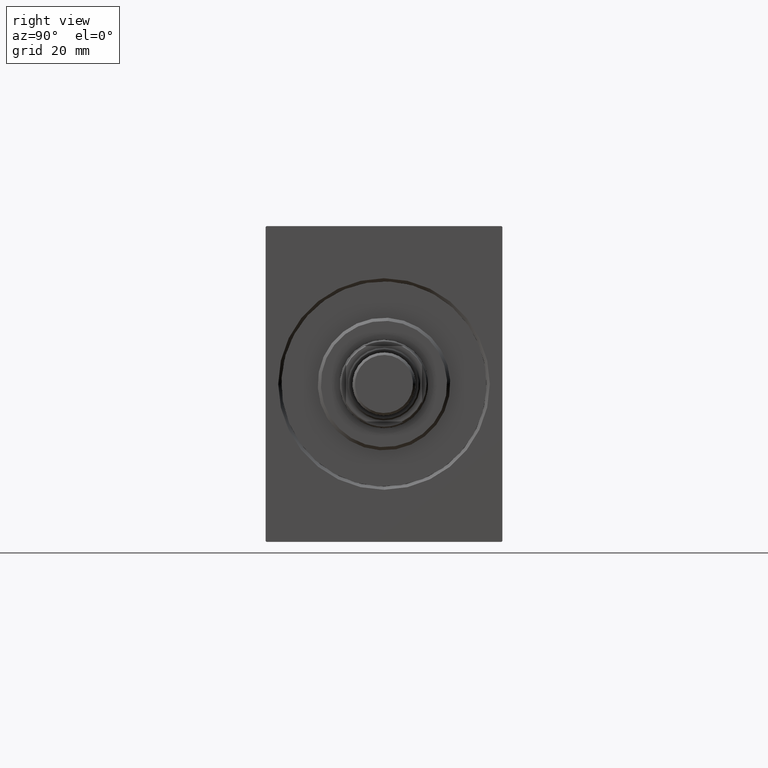
[diagram: clean part render]
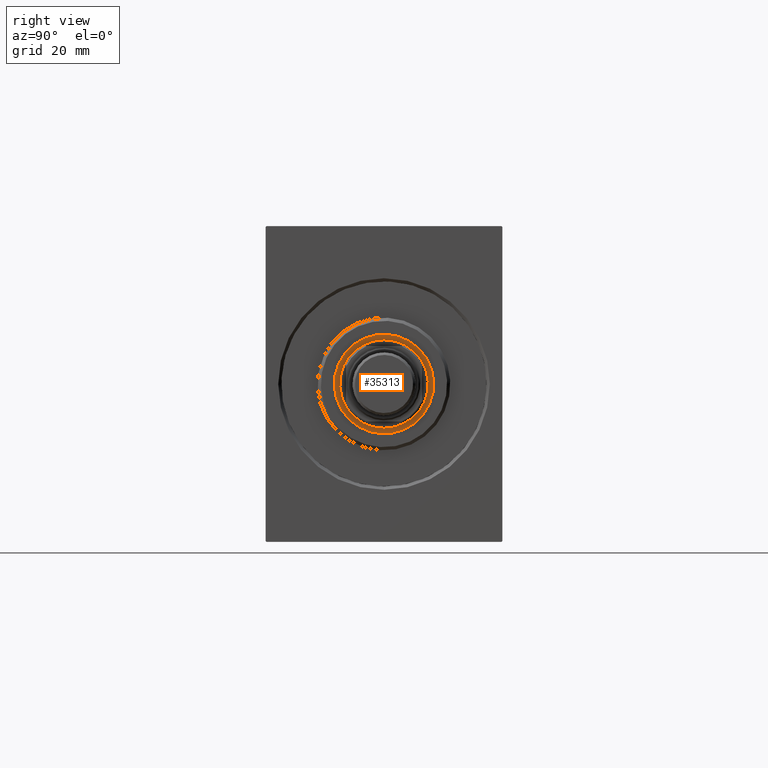
[diagram: same view with one face highlighted and labeled with its STEP entity id]
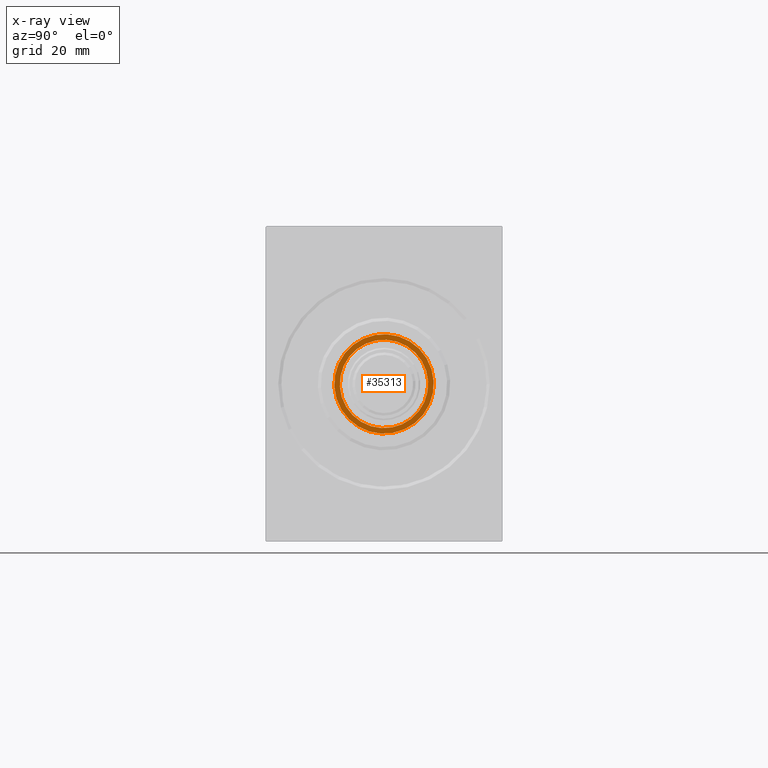
[diagram: x-ray of the same camera — body ghosted, the highlighted face saturated]
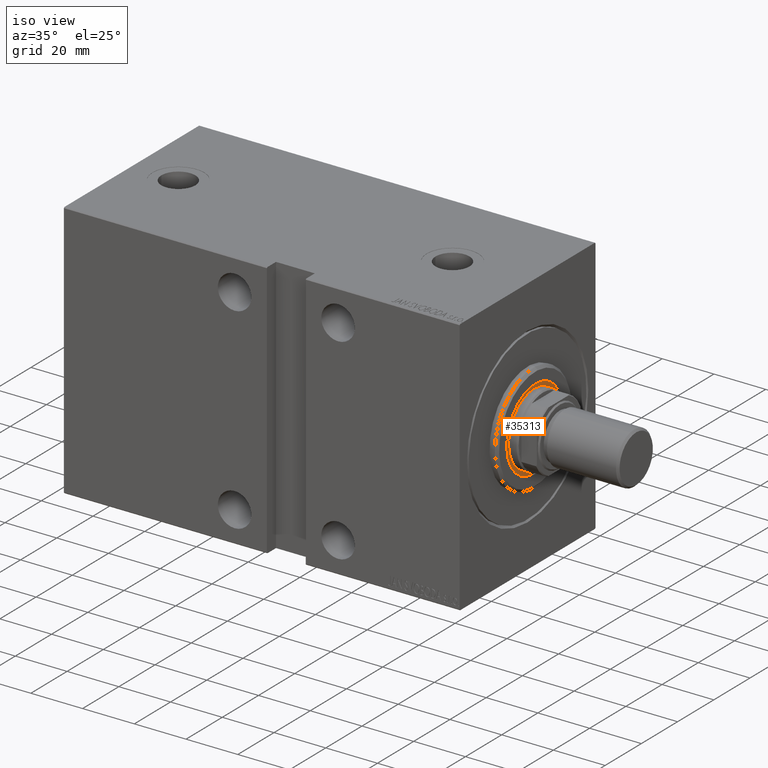
[diagram: same view with one face highlighted and labeled with its STEP entity id]
A machine part, right view. The second image highlights one B-rep face of the part: STEP entity #35313.
The next image is the same camera in x-ray: the body ghosted, the highlighted face saturated — about 0% of this face is hidden behind the body in this view.
A second angle (iso view) of the same face is appended — the face is thin or edge-on in the first view.
In plain terms, the highlighted planar face has unit normal (1, -0, -0).
Its self-contained STEP definition (entity closure, byte-faithful):
#1114 = AXIS2_PLACEMENT_3D ( 'NONE', #30629, #14237, #38216 ) ;
#3281 = FACE_OUTER_BOUND ( 'NONE', #18127, .T. ) ;
#6233 = EDGE_CURVE ( 'NONE', #16933, #34589, #19682, .T. ) ;
#6837 = CIRCLE ( 'NONE', #31880, 15.75000000000000000 ) ;
#7629 = AXIS2_PLACEMENT_3D ( 'NONE', #19980, #10305, #43738 ) ;
#8042 = AXIS2_PLACEMENT_3D ( 'NONE', #30639, #16959, #20548 ) ;
#9753 = CARTESIAN_POINT ( 'NONE',  ( 2.500000000000000444, 0.000000000000000000, 0.000000000000000000 ) ) ;
#10305 = DIRECTION ( 'NONE',  ( 1.000000000000000000, 0.000000000000000000, 0.000000000000000000 ) ) ;
#11162 = ORIENTED_EDGE ( 'NONE', *, *, #6233, .F. ) ;
#12001 = DIRECTION ( 'NONE',  ( 0.000000000000000000, 0.000000000000000000, -1.000000000000000000 ) ) ;
#12186 = CARTESIAN_POINT ( 'NONE',  ( 2.500000000000000444, 0.000000000000000000, -14.00000000000000000 ) ) ;
#13438 = CARTESIAN_POINT ( 'NONE',  ( 2.500000000000000444, 1.714505518806294638E-15, 14.00000000000000000 ) ) ;
#14237 = DIRECTION ( 'NONE',  ( 1.000000000000000000, 0.000000000000000000, 0.000000000000000000 ) ) ;
#15593 = DIRECTION ( 'NONE',  ( 0.000000000000000000, 0.000000000000000000, -1.000000000000000000 ) ) ;
#16229 = CIRCLE ( 'NONE', #7629, 14.00000000000000000 ) ;
#16933 = VERTEX_POINT ( 'NONE', #13438 ) ;
#16948 = PLANE ( 'NONE',  #1114 ) ;
#16959 = DIRECTION ( 'NONE',  ( 1.000000000000000000, 0.000000000000000000, 0.000000000000000000 ) ) ;
#18127 = EDGE_LOOP ( 'NONE', ( #42707, #42419 ) ) ;
#19422 = CARTESIAN_POINT ( 'NONE',  ( 2.500000000000000000, 0.000000000000000000, 0.000000000000000000 ) ) ;
#19682 = CIRCLE ( 'NONE', #32559, 14.00000000000000000 ) ;
#19980 = CARTESIAN_POINT ( 'NONE',  ( 2.500000000000000444, 0.000000000000000000, 0.000000000000000000 ) ) ;
#20315 = FACE_BOUND ( 'NONE', #43173, .T. ) ;
#20548 = DIRECTION ( 'NONE',  ( 0.000000000000000000, 0.000000000000000000, -1.000000000000000000 ) ) ;
#21055 = CARTESIAN_POINT ( 'NONE',  ( 2.500000000000000000, 1.928818708657081344E-15, 15.75000000000000000 ) ) ;
#21955 = EDGE_CURVE ( 'NONE', #27891, #31693, #29535, .T. ) ;
#23363 = CARTESIAN_POINT ( 'NONE',  ( 2.500000000000000000, 0.000000000000000000, -15.75000000000000000 ) ) ;
#23447 = DIRECTION ( 'NONE',  ( 1.000000000000000000, 0.000000000000000000, 0.000000000000000000 ) ) ;
#27891 = VERTEX_POINT ( 'NONE', #23363 ) ;
#29283 = EDGE_CURVE ( 'NONE', #31693, #27891, #6837, .T. ) ;
#29535 = CIRCLE ( 'NONE', #8042, 15.75000000000000000 ) ;
#30629 = CARTESIAN_POINT ( 'NONE',  ( 2.500000000000000000, 0.000000000000000000, 0.000000000000000000 ) ) ;
#30639 = CARTESIAN_POINT ( 'NONE',  ( 2.500000000000000000, 0.000000000000000000, 0.000000000000000000 ) ) ;
#31693 = VERTEX_POINT ( 'NONE', #21055 ) ;
#31880 = AXIS2_PLACEMENT_3D ( 'NONE', #19422, #33093, #12001 ) ;
#32559 = AXIS2_PLACEMENT_3D ( 'NONE', #9753, #23447, #15593 ) ;
#33093 = DIRECTION ( 'NONE',  ( 1.000000000000000000, 0.000000000000000000, 0.000000000000000000 ) ) ;
#33589 = ORIENTED_EDGE ( 'NONE', *, *, #33799, .F. ) ;
#33799 = EDGE_CURVE ( 'NONE', #34589, #16933, #16229, .T. ) ;
#34589 = VERTEX_POINT ( 'NONE', #12186 ) ;
#35313 = ADVANCED_FACE ( 'NONE', ( #20315, #3281 ), #16948, .T. ) ;
#38216 = DIRECTION ( 'NONE',  ( 0.000000000000000000, 0.000000000000000000, -1.000000000000000000 ) ) ;
#42419 = ORIENTED_EDGE ( 'NONE', *, *, #29283, .T. ) ;
#42707 = ORIENTED_EDGE ( 'NONE', *, *, #21955, .T. ) ;
#43173 = EDGE_LOOP ( 'NONE', ( #33589, #11162 ) ) ;
#43738 = DIRECTION ( 'NONE',  ( 0.000000000000000000, 0.000000000000000000, -1.000000000000000000 ) ) ;